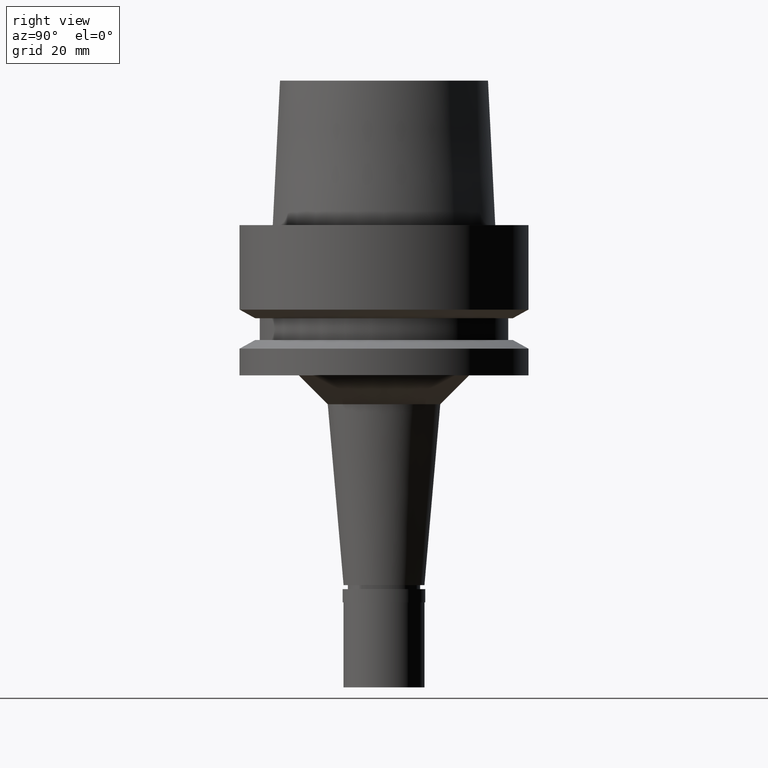
[diagram: clean part render]
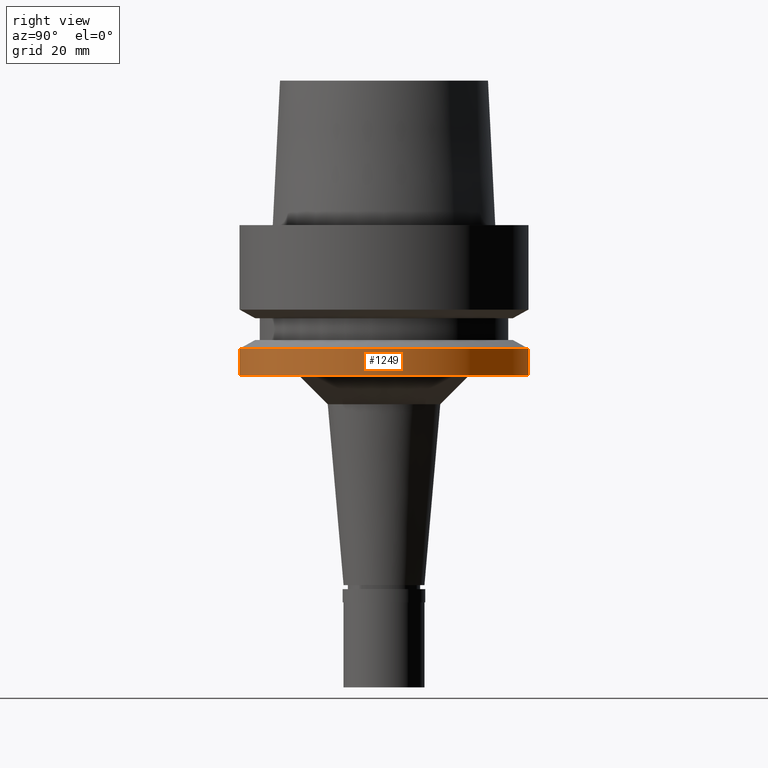
[diagram: same view with one face highlighted and labeled with its STEP entity id]
A machine part, right view. The second image highlights one B-rep face of the part: STEP entity #1249.
In plain terms, the highlighted cylindrical surface (partial cylindrical patch) has radius 25 mm, axis along (0, 0, -1).
Its self-contained STEP definition (entity closure, byte-faithful):
#18 = ORIENTED_EDGE ( 'NONE', *, *, #1420, .T. ) ;
#21 = AXIS2_PLACEMENT_3D ( 'NONE', #552, #802, #2017 ) ;
#90 = DIRECTION ( 'NONE',  ( 0.0000000000000000000, 1.000000000000000000, 0.0000000000000000000 ) ) ;
#100 = DIRECTION ( 'NONE',  ( 0.0000000000000000000, 0.0000000000000000000, -1.000000000000000000 ) ) ;
#155 = AXIS2_PLACEMENT_3D ( 'NONE', #2534, #1137, #1941 ) ;
#338 = EDGE_CURVE ( 'NONE', #505, #1381, #2660, .T. ) ;
#504 = CARTESIAN_POINT ( 'NONE',  ( 0.0000000000000000000, -25.00000000000000000, -21.38164558085999900 ) ) ;
#505 = VERTEX_POINT ( 'NONE', #504 ) ;
#543 = AXIS2_PLACEMENT_3D ( 'NONE', #1522, #100, #90 ) ;
#552 = CARTESIAN_POINT ( 'NONE',  ( 0.0000000000000000000, 0.0000000000000000000, -26.00000000000000000 ) ) ;
#721 = VECTOR ( 'NONE', #2249, 1000.000000000000000 ) ;
#725 = VERTEX_POINT ( 'NONE', #2359 ) ;
#779 = ORIENTED_EDGE ( 'NONE', *, *, #1668, .F. ) ;
#802 = DIRECTION ( 'NONE',  ( 0.0000000000000000000, 0.0000000000000000000, 1.000000000000000000 ) ) ;
#966 = CARTESIAN_POINT ( 'NONE',  ( 0.0000000000000000000, -25.00000000000000000, -21.38164558085999900 ) ) ;
#1137 = DIRECTION ( 'NONE',  ( 0.0000000000000000000, 0.0000000000000000000, -1.000000000000000000 ) ) ;
#1174 = FACE_OUTER_BOUND ( 'NONE', #1898, .T. ) ;
#1249 = ADVANCED_FACE ( 'NONE', ( #1174 ), #1714, .T. ) ;
#1274 = EDGE_CURVE ( 'NONE', #1381, #725, #1765, .T. ) ;
#1381 = VERTEX_POINT ( 'NONE', #1463 ) ;
#1420 = EDGE_CURVE ( 'NONE', #2222, #505, #1813, .T. ) ;
#1463 = CARTESIAN_POINT ( 'NONE',  ( 0.0000000000000000000, -25.00000000000000000, -26.00000000000000000 ) ) ;
#1522 = CARTESIAN_POINT ( 'NONE',  ( 0.0000000000000000000, 0.0000000000000000000, -21.38164558085999900 ) ) ;
#1668 = EDGE_CURVE ( 'NONE', #2222, #725, #2010, .T. ) ;
#1714 = CYLINDRICAL_SURFACE ( 'NONE', #155, 25.00000000000000000 ) ;
#1765 = CIRCLE ( 'NONE', #21, 25.00000000000000000 ) ;
#1772 = VECTOR ( 'NONE', #1792, 1000.000000000000000 ) ;
#1792 = DIRECTION ( 'NONE',  ( 0.0000000000000000000, 0.0000000000000000000, -1.000000000000000000 ) ) ;
#1813 = CIRCLE ( 'NONE', #543, 25.00000000000000000 ) ;
#1823 = CARTESIAN_POINT ( 'NONE',  ( 0.0000000000000000000, 25.00000000000000000, -21.38164558085999900 ) ) ;
#1898 = EDGE_LOOP ( 'NONE', ( #18, #2505, #2310, #779 ) ) ;
#1941 = DIRECTION ( 'NONE',  ( 0.0000000000000000000, -1.000000000000000000, 0.0000000000000000000 ) ) ;
#2010 = LINE ( 'NONE', #1823, #721 ) ;
#2017 = DIRECTION ( 'NONE',  ( 0.0000000000000000000, -1.000000000000000000, 0.0000000000000000000 ) ) ;
#2222 = VERTEX_POINT ( 'NONE', #2283 ) ;
#2249 = DIRECTION ( 'NONE',  ( 0.0000000000000000000, 0.0000000000000000000, -1.000000000000000000 ) ) ;
#2283 = CARTESIAN_POINT ( 'NONE',  ( 0.0000000000000000000, 25.00000000000000000, -21.38164558085999900 ) ) ;
#2310 = ORIENTED_EDGE ( 'NONE', *, *, #1274, .T. ) ;
#2359 = CARTESIAN_POINT ( 'NONE',  ( 0.0000000000000000000, 25.00000000000000000, -26.00000000000000000 ) ) ;
#2505 = ORIENTED_EDGE ( 'NONE', *, *, #338, .T. ) ;
#2534 = CARTESIAN_POINT ( 'NONE',  ( 0.0000000000000000000, 0.0000000000000000000, 30.05000000000000071 ) ) ;
#2660 = LINE ( 'NONE', #966, #1772 ) ;